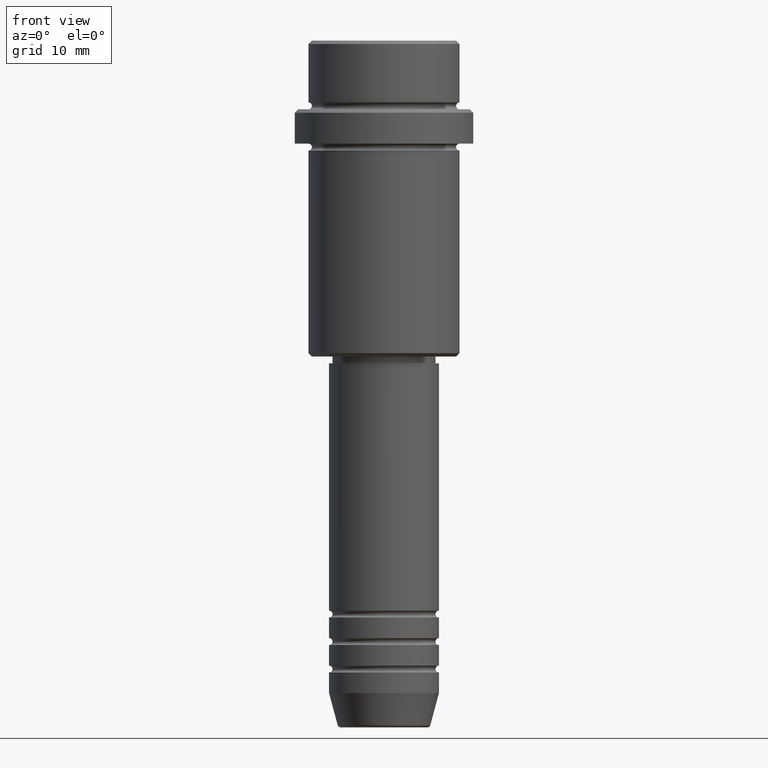
[diagram: clean part render]
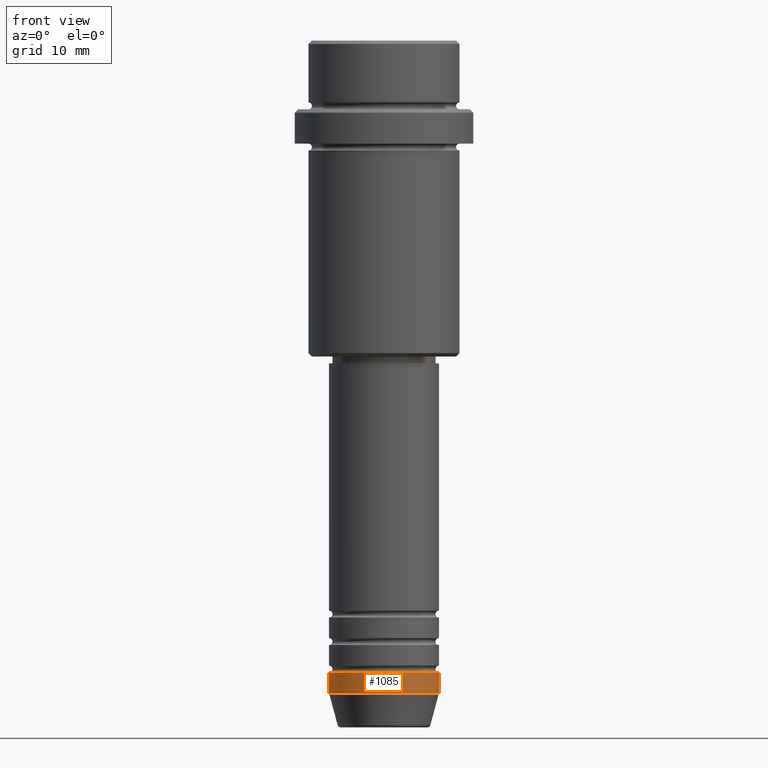
[diagram: same view with one face highlighted and labeled with its STEP entity id]
A machine part, front view. The second image highlights one B-rep face of the part: STEP entity #1085.
In plain terms, the highlighted cylindrical surface (partial cylindrical patch) has radius 8 mm, axis along (-0, -0, 1).
Its self-contained STEP definition (entity closure, byte-faithful):
#12 = VERTEX_POINT ( 'NONE', #1232 ) ;
#56 = EDGE_LOOP ( 'NONE', ( #298, #1337, #222, #1087 ) ) ;
#105 = EDGE_CURVE ( 'NONE', #109, #125, #729, .T. ) ;
#109 = VERTEX_POINT ( 'NONE', #423 ) ;
#113 = FACE_OUTER_BOUND ( 'NONE', #56, .T. ) ;
#125 = VERTEX_POINT ( 'NONE', #174 ) ;
#174 = CARTESIAN_POINT ( 'NONE',  ( 8.000000000000000000, 0.000000000000000000, -92.00000000000000000 ) ) ;
#199 = DIRECTION ( 'NONE',  ( 1.000000000000000000, 0.000000000000000000, 0.000000000000000000 ) ) ;
#204 = CYLINDRICAL_SURFACE ( 'NONE', #316, 8.000000000000000000 ) ;
#216 = EDGE_CURVE ( 'NONE', #1077, #12, #431, .T. ) ;
#222 = ORIENTED_EDGE ( 'NONE', *, *, #105, .T. ) ;
#288 = CIRCLE ( 'NONE', #1079, 8.000000000000000000 ) ;
#298 = ORIENTED_EDGE ( 'NONE', *, *, #216, .F. ) ;
#316 = AXIS2_PLACEMENT_3D ( 'NONE', #434, #317, #199 ) ;
#317 = DIRECTION ( 'NONE',  ( -0.000000000000000000, -0.000000000000000000, 1.000000000000000000 ) ) ;
#349 = DIRECTION ( 'NONE',  ( 1.000000000000000000, 0.000000000000000000, 0.000000000000000000 ) ) ;
#400 = DIRECTION ( 'NONE',  ( -0.000000000000000000, -0.000000000000000000, 1.000000000000000000 ) ) ;
#406 = CARTESIAN_POINT ( 'NONE',  ( 8.000000000000000000, 0.000000000000000000, 0.000000000000000000 ) ) ;
#423 = CARTESIAN_POINT ( 'NONE',  ( 8.000000000000000000, 0.000000000000000000, -95.00000000000000000 ) ) ;
#431 = LINE ( 'NONE', #1192, #987 ) ;
#434 = CARTESIAN_POINT ( 'NONE',  ( 0.000000000000000000, 0.000000000000000000, 0.000000000000000000 ) ) ;
#590 = DIRECTION ( 'NONE',  ( -0.000000000000000000, -0.000000000000000000, 1.000000000000000000 ) ) ;
#670 = CARTESIAN_POINT ( 'NONE',  ( -8.000000000000000000, 9.797174393178825657E-16, -95.00000000000000000 ) ) ;
#729 = LINE ( 'NONE', #406, #782 ) ;
#770 = EDGE_CURVE ( 'NONE', #12, #125, #1141, .T. ) ;
#782 = VECTOR ( 'NONE', #1264, 1000.000000000000000 ) ;
#987 = VECTOR ( 'NONE', #1411, 1000.000000000000000 ) ;
#1077 = VERTEX_POINT ( 'NONE', #670 ) ;
#1079 = AXIS2_PLACEMENT_3D ( 'NONE', #1330, #590, #349 ) ;
#1085 = ADVANCED_FACE ( 'NONE', ( #113 ), #204, .T. ) ;
#1087 = ORIENTED_EDGE ( 'NONE', *, *, #770, .F. ) ;
#1141 = CIRCLE ( 'NONE', #1302, 8.000000000000000000 ) ;
#1150 = EDGE_CURVE ( 'NONE', #1077, #109, #288, .T. ) ;
#1158 = DIRECTION ( 'NONE',  ( 1.000000000000000000, 0.000000000000000000, 0.000000000000000000 ) ) ;
#1192 = CARTESIAN_POINT ( 'NONE',  ( -8.000000000000000000, 9.797174393178825657E-16, 0.000000000000000000 ) ) ;
#1232 = CARTESIAN_POINT ( 'NONE',  ( -8.000000000000000000, 9.797174393178825657E-16, -92.00000000000000000 ) ) ;
#1264 = DIRECTION ( 'NONE',  ( -0.000000000000000000, -0.000000000000000000, 1.000000000000000000 ) ) ;
#1302 = AXIS2_PLACEMENT_3D ( 'NONE', #1390, #400, #1158 ) ;
#1330 = CARTESIAN_POINT ( 'NONE',  ( 0.000000000000000000, 0.000000000000000000, -95.00000000000000000 ) ) ;
#1337 = ORIENTED_EDGE ( 'NONE', *, *, #1150, .T. ) ;
#1390 = CARTESIAN_POINT ( 'NONE',  ( 0.000000000000000000, 0.000000000000000000, -92.00000000000000000 ) ) ;
#1411 = DIRECTION ( 'NONE',  ( -0.000000000000000000, -0.000000000000000000, 1.000000000000000000 ) ) ;